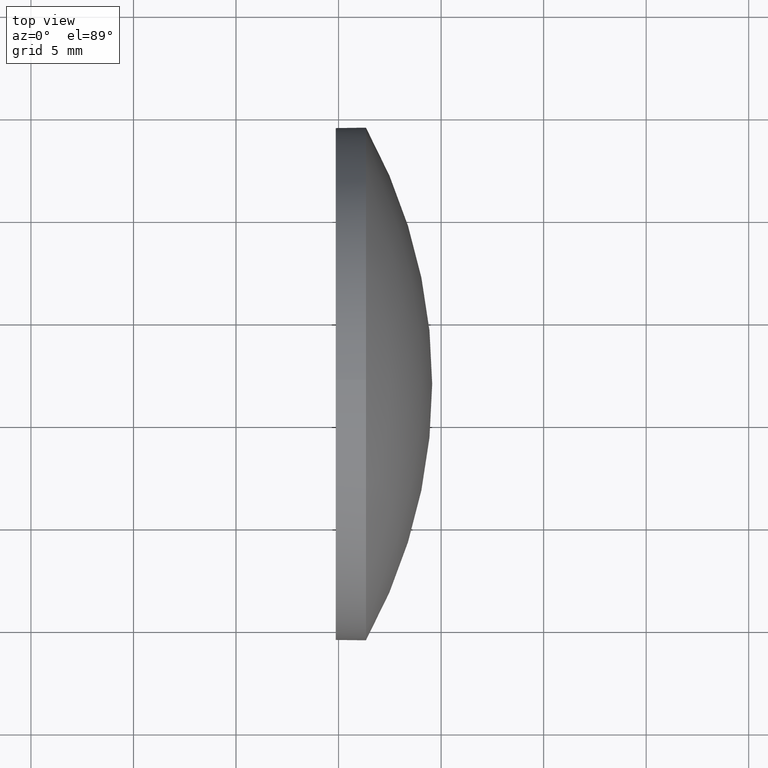
[diagram: clean part render]
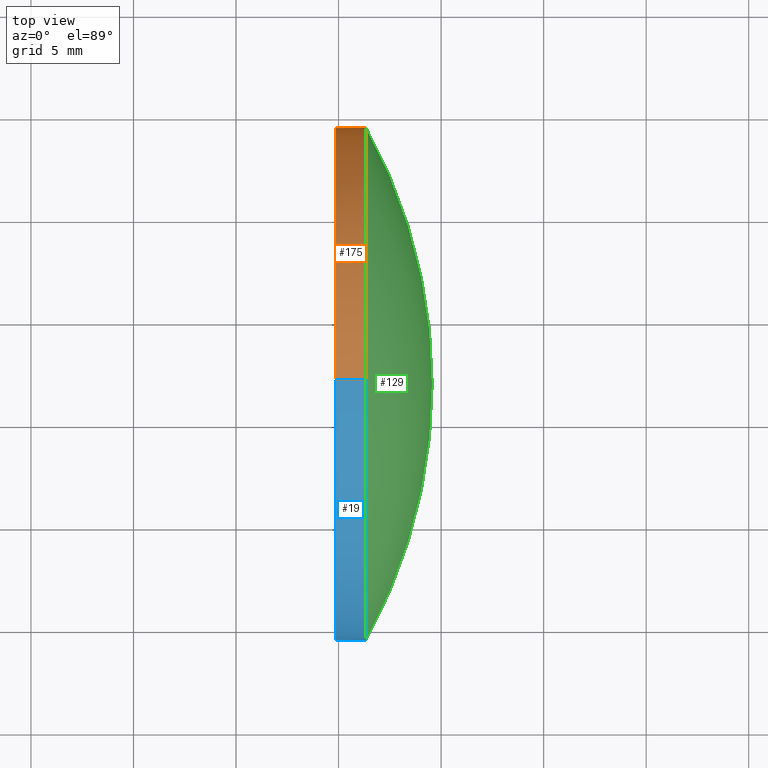
[diagram: same view with three faces highlighted in distinct colors, each labeled with its STEP entity id]
A machine part, top view with three faces highlighted in distinct colors.
Their STEP definitions:

[orange] entity #175 — the highlighted cylindrical surface (partial cylindrical patch) has radius 12.5 mm, axis along (-1, -0, -0).
#1 = EDGE_CURVE ( 'NONE', #102, #184, #131, .T. ) ;
#12 = CARTESIAN_POINT ( 'NONE',  ( 552.5001616387212400, 36.89370908063153800, 12.49999999999999600 ) ) ;
#13 = CARTESIAN_POINT ( 'NONE',  ( 552.5001616387212400, 36.89370908063153800, -12.49999999999999600 ) ) ;
#14 = CARTESIAN_POINT ( 'NONE',  ( 554.8657775414822000, 36.89370908063153800, 12.49999999999999600 ) ) ;
#17 = ORIENTED_EDGE ( 'NONE', *, *, #150, .F. ) ;
#23 = CARTESIAN_POINT ( 'NONE',  ( 554.8657775414822000, 36.89370908063153800, -12.49999999999999600 ) ) ;
#24 = DIRECTION ( 'NONE',  ( -1.000000000000000000, -0.0000000000000000000, -0.0000000000000000000 ) ) ;
#26 = DIRECTION ( 'NONE',  ( -1.000000000000000000, -0.0000000000000000000, -0.0000000000000000000 ) ) ;
#30 = CARTESIAN_POINT ( 'NONE',  ( 554.8657775414822000, 36.89370908063153800, 0.0000000000000000000 ) ) ;
#33 = AXIS2_PLACEMENT_3D ( 'NONE', #82, #70, #157 ) ;
#37 = LINE ( 'NONE', #13, #128 ) ;
#45 = DIRECTION ( 'NONE',  ( 0.0000000000000000000, 0.0000000000000000000, 1.000000000000000000 ) ) ;
#47 = AXIS2_PLACEMENT_3D ( 'NONE', #30, #141, #71 ) ;
#54 = CARTESIAN_POINT ( 'NONE',  ( 556.3357775414822300, 36.89370908063153800, 0.0000000000000000000 ) ) ;
#61 = VERTEX_POINT ( 'NONE', #14 ) ;
#65 = EDGE_LOOP ( 'NONE', ( #127, #151, #179, #17, #114 ) ) ;
#67 = CARTESIAN_POINT ( 'NONE',  ( 556.3357775414822300, 36.89370908063153800, 12.49999999999999600 ) ) ;
#68 = DIRECTION ( 'NONE',  ( 0.0000000000000000000, 0.0000000000000000000, 1.000000000000000000 ) ) ;
#70 = DIRECTION ( 'NONE',  ( -1.000000000000000000, -0.0000000000000000000, -0.0000000000000000000 ) ) ;
#71 = DIRECTION ( 'NONE',  ( 0.0000000000000000000, 0.0000000000000000000, 1.000000000000000000 ) ) ;
#77 = CYLINDRICAL_SURFACE ( 'NONE', #164, 12.49999999999999600 ) ;
#79 = LINE ( 'NONE', #12, #113 ) ;
#82 = CARTESIAN_POINT ( 'NONE',  ( 556.3357775414822300, 36.89370908063153800, 0.0000000000000000000 ) ) ;
#84 = CARTESIAN_POINT ( 'NONE',  ( 552.5001616387212400, 36.89370908063153800, 0.0000000000000000000 ) ) ;
#102 = VERTEX_POINT ( 'NONE', #67 ) ;
#107 = CIRCLE ( 'NONE', #146, 12.49999999999999600 ) ;
#110 = VERTEX_POINT ( 'NONE', #23 ) ;
#111 = CARTESIAN_POINT ( 'NONE',  ( 556.3357775414822300, 36.89370908063153800, -12.49999999999999600 ) ) ;
#113 = VECTOR ( 'NONE', #26, 1000.000000000000000 ) ;
#114 = ORIENTED_EDGE ( 'NONE', *, *, #1, .T. ) ;
#124 = DIRECTION ( 'NONE',  ( -1.000000000000000000, -0.0000000000000000000, -0.0000000000000000000 ) ) ;
#127 = ORIENTED_EDGE ( 'NONE', *, *, #132, .T. ) ;
#128 = VECTOR ( 'NONE', #139, 1000.000000000000000 ) ;
#131 = CIRCLE ( 'NONE', #33, 12.49999999999999600 ) ;
#132 = EDGE_CURVE ( 'NONE', #184, #173, #107, .T. ) ;
#139 = DIRECTION ( 'NONE',  ( -1.000000000000000000, -0.0000000000000000000, -0.0000000000000000000 ) ) ;
#141 = DIRECTION ( 'NONE',  ( -1.000000000000000000, -0.0000000000000000000, -0.0000000000000000000 ) ) ;
#146 = AXIS2_PLACEMENT_3D ( 'NONE', #54, #24, #68 ) ;
#150 = EDGE_CURVE ( 'NONE', #102, #61, #79, .T. ) ;
#151 = ORIENTED_EDGE ( 'NONE', *, *, #163, .T. ) ;
#157 = DIRECTION ( 'NONE',  ( 0.0000000000000000000, 0.0000000000000000000, 1.000000000000000000 ) ) ;
#160 = CIRCLE ( 'NONE', #47, 12.49999999999999600 ) ;
#163 = EDGE_CURVE ( 'NONE', #173, #110, #37, .T. ) ;
#164 = AXIS2_PLACEMENT_3D ( 'NONE', #84, #124, #45 ) ;
#165 = EDGE_CURVE ( 'NONE', #61, #110, #160, .T. ) ;
#173 = VERTEX_POINT ( 'NONE', #111 ) ;
#175 = ADVANCED_FACE ( 'NONE', ( #180 ), #77, .T. ) ;
#179 = ORIENTED_EDGE ( 'NONE', *, *, #165, .F. ) ;
#180 = FACE_OUTER_BOUND ( 'NONE', #65, .T. ) ;
#184 = VERTEX_POINT ( 'NONE', #185 ) ;
#185 = CARTESIAN_POINT ( 'NONE',  ( 556.3357775414822300, 49.39370908063151700, 1.530808498934187200E-015 ) ) ;

[blue] entity #19 — the highlighted cylindrical surface (partial cylindrical patch) has radius 12.5 mm, axis along (-1, -0, -0).
#9 = DIRECTION ( 'NONE',  ( 0.0000000000000000000, 0.0000000000000000000, 1.000000000000000000 ) ) ;
#11 = CARTESIAN_POINT ( 'NONE',  ( 554.8657775414822000, 36.89370908063153800, 0.0000000000000000000 ) ) ;
#12 = CARTESIAN_POINT ( 'NONE',  ( 552.5001616387212400, 36.89370908063153800, 12.49999999999999600 ) ) ;
#13 = CARTESIAN_POINT ( 'NONE',  ( 552.5001616387212400, 36.89370908063153800, -12.49999999999999600 ) ) ;
#14 = CARTESIAN_POINT ( 'NONE',  ( 554.8657775414822000, 36.89370908063153800, 12.49999999999999600 ) ) ;
#19 = ADVANCED_FACE ( 'NONE', ( #118 ), #147, .T. ) ;
#21 = EDGE_CURVE ( 'NONE', #173, #145, #96, .T. ) ;
#23 = CARTESIAN_POINT ( 'NONE',  ( 554.8657775414822000, 36.89370908063153800, -12.49999999999999600 ) ) ;
#26 = DIRECTION ( 'NONE',  ( -1.000000000000000000, -0.0000000000000000000, -0.0000000000000000000 ) ) ;
#37 = LINE ( 'NONE', #13, #128 ) ;
#40 = DIRECTION ( 'NONE',  ( -1.000000000000000000, -0.0000000000000000000, -0.0000000000000000000 ) ) ;
#48 = AXIS2_PLACEMENT_3D ( 'NONE', #103, #177, #53 ) ;
#51 = AXIS2_PLACEMENT_3D ( 'NONE', #11, #80, #119 ) ;
#53 = DIRECTION ( 'NONE',  ( 0.0000000000000000000, 0.0000000000000000000, 1.000000000000000000 ) ) ;
#55 = CARTESIAN_POINT ( 'NONE',  ( 556.3357775414822300, 24.39370908063157700, 0.0000000000000000000 ) ) ;
#61 = VERTEX_POINT ( 'NONE', #14 ) ;
#64 = EDGE_CURVE ( 'NONE', #110, #61, #99, .T. ) ;
#67 = CARTESIAN_POINT ( 'NONE',  ( 556.3357775414822300, 36.89370908063153800, 12.49999999999999600 ) ) ;
#69 = DIRECTION ( 'NONE',  ( -1.000000000000000000, -0.0000000000000000000, -0.0000000000000000000 ) ) ;
#76 = ORIENTED_EDGE ( 'NONE', *, *, #150, .T. ) ;
#78 = ORIENTED_EDGE ( 'NONE', *, *, #88, .T. ) ;
#79 = LINE ( 'NONE', #12, #113 ) ;
#80 = DIRECTION ( 'NONE',  ( -1.000000000000000000, -0.0000000000000000000, -0.0000000000000000000 ) ) ;
#88 = EDGE_CURVE ( 'NONE', #145, #102, #149, .T. ) ;
#89 = CARTESIAN_POINT ( 'NONE',  ( 556.3357775414822300, 36.89370908063153800, 0.0000000000000000000 ) ) ;
#95 = EDGE_LOOP ( 'NONE', ( #98, #134, #78, #76, #130 ) ) ;
#96 = CIRCLE ( 'NONE', #142, 12.49999999999999600 ) ;
#98 = ORIENTED_EDGE ( 'NONE', *, *, #163, .F. ) ;
#99 = CIRCLE ( 'NONE', #51, 12.49999999999999600 ) ;
#101 = AXIS2_PLACEMENT_3D ( 'NONE', #89, #40, #9 ) ;
#102 = VERTEX_POINT ( 'NONE', #67 ) ;
#103 = CARTESIAN_POINT ( 'NONE',  ( 552.5001616387212400, 36.89370908063153800, 0.0000000000000000000 ) ) ;
#110 = VERTEX_POINT ( 'NONE', #23 ) ;
#111 = CARTESIAN_POINT ( 'NONE',  ( 556.3357775414822300, 36.89370908063153800, -12.49999999999999600 ) ) ;
#113 = VECTOR ( 'NONE', #26, 1000.000000000000000 ) ;
#118 = FACE_OUTER_BOUND ( 'NONE', #95, .T. ) ;
#119 = DIRECTION ( 'NONE',  ( 0.0000000000000000000, 0.0000000000000000000, 1.000000000000000000 ) ) ;
#128 = VECTOR ( 'NONE', #139, 1000.000000000000000 ) ;
#130 = ORIENTED_EDGE ( 'NONE', *, *, #64, .F. ) ;
#134 = ORIENTED_EDGE ( 'NONE', *, *, #21, .T. ) ;
#138 = DIRECTION ( 'NONE',  ( 0.0000000000000000000, 0.0000000000000000000, 1.000000000000000000 ) ) ;
#139 = DIRECTION ( 'NONE',  ( -1.000000000000000000, -0.0000000000000000000, -0.0000000000000000000 ) ) ;
#142 = AXIS2_PLACEMENT_3D ( 'NONE', #154, #69, #138 ) ;
#145 = VERTEX_POINT ( 'NONE', #55 ) ;
#147 = CYLINDRICAL_SURFACE ( 'NONE', #48, 12.49999999999999600 ) ;
#149 = CIRCLE ( 'NONE', #101, 12.49999999999999600 ) ;
#150 = EDGE_CURVE ( 'NONE', #102, #61, #79, .T. ) ;
#154 = CARTESIAN_POINT ( 'NONE',  ( 556.3357775414822300, 36.89370908063153800, 0.0000000000000000000 ) ) ;
#163 = EDGE_CURVE ( 'NONE', #173, #110, #37, .T. ) ;
#173 = VERTEX_POINT ( 'NONE', #111 ) ;
#177 = DIRECTION ( 'NONE',  ( -1.000000000000000000, -0.0000000000000000000, -0.0000000000000000000 ) ) ;

[green] entity #129 — the highlighted spherical surface has radius 25.8023 mm.
#1 = EDGE_CURVE ( 'NONE', #102, #184, #131, .T. ) ;
#2 = CIRCLE ( 'NONE', #18, 25.80230650154791000 ) ;
#4 = EDGE_CURVE ( 'NONE', #39, #145, #2, .T. ) ;
#7 = CIRCLE ( 'NONE', #136, 25.80230650154793200 ) ;
#9 = DIRECTION ( 'NONE',  ( 0.0000000000000000000, 0.0000000000000000000, 1.000000000000000000 ) ) ;
#10 = FACE_OUTER_BOUND ( 'NONE', #166, .T. ) ;
#18 = AXIS2_PLACEMENT_3D ( 'NONE', #169, #153, #106 ) ;
#28 = DIRECTION ( 'NONE',  ( 0.0000000000000000000, 0.0000000000000000000, 1.000000000000000000 ) ) ;
#31 = DIRECTION ( 'NONE',  ( 0.0000000000000000000, -1.224646799147353200E-016, 1.000000000000000000 ) ) ;
#32 = ORIENTED_EDGE ( 'NONE', *, *, #1, .F. ) ;
#33 = AXIS2_PLACEMENT_3D ( 'NONE', #82, #70, #157 ) ;
#35 = ORIENTED_EDGE ( 'NONE', *, *, #88, .F. ) ;
#39 = VERTEX_POINT ( 'NONE', #123 ) ;
#40 = DIRECTION ( 'NONE',  ( -1.000000000000000000, -0.0000000000000000000, -0.0000000000000000000 ) ) ;
#43 = DIRECTION ( 'NONE',  ( 0.0000000000000000000, -1.000000000000000000, 0.0000000000000000000 ) ) ;
#44 = ORIENTED_EDGE ( 'NONE', *, *, #4, .F. ) ;
#55 = CARTESIAN_POINT ( 'NONE',  ( 556.3357775414822300, 24.39370908063157700, 0.0000000000000000000 ) ) ;
#57 = DIRECTION ( 'NONE',  ( 0.0000000000000000000, -1.000000000000000000, -1.224646799147353200E-016 ) ) ;
#67 = CARTESIAN_POINT ( 'NONE',  ( 556.3357775414822300, 36.89370908063153800, 12.49999999999999600 ) ) ;
#70 = DIRECTION ( 'NONE',  ( -1.000000000000000000, -0.0000000000000000000, -0.0000000000000000000 ) ) ;
#82 = CARTESIAN_POINT ( 'NONE',  ( 556.3357775414822300, 36.89370908063153800, 0.0000000000000000000 ) ) ;
#88 = EDGE_CURVE ( 'NONE', #145, #102, #149, .T. ) ;
#89 = CARTESIAN_POINT ( 'NONE',  ( 556.3357775414822300, 36.89370908063153800, 0.0000000000000000000 ) ) ;
#101 = AXIS2_PLACEMENT_3D ( 'NONE', #89, #40, #9 ) ;
#102 = VERTEX_POINT ( 'NONE', #67 ) ;
#106 = DIRECTION ( 'NONE',  ( -1.000000000000000000, 0.0000000000000000000, 0.0000000000000000000 ) ) ;
#117 = SPHERICAL_SURFACE ( 'NONE', #174, 25.80230650154793200 ) ;
#123 = CARTESIAN_POINT ( 'NONE',  ( 559.5657775414821300, 36.89370908063155200, 0.0000000000000000000 ) ) ;
#129 = ADVANCED_FACE ( 'NONE', ( #10 ), #117, .T. ) ;
#131 = CIRCLE ( 'NONE', #33, 12.49999999999999600 ) ;
#135 = CARTESIAN_POINT ( 'NONE',  ( 533.7634710399343000, 36.89370908063155200, 0.0000000000000000000 ) ) ;
#136 = AXIS2_PLACEMENT_3D ( 'NONE', #159, #31, #57 ) ;
#145 = VERTEX_POINT ( 'NONE', #55 ) ;
#149 = CIRCLE ( 'NONE', #101, 12.49999999999999600 ) ;
#153 = DIRECTION ( 'NONE',  ( 0.0000000000000000000, 0.0000000000000000000, -1.000000000000000000 ) ) ;
#157 = DIRECTION ( 'NONE',  ( 0.0000000000000000000, 0.0000000000000000000, 1.000000000000000000 ) ) ;
#158 = ORIENTED_EDGE ( 'NONE', *, *, #181, .T. ) ;
#159 = CARTESIAN_POINT ( 'NONE',  ( 533.7634710399343000, 36.89370908063155200, 0.0000000000000000000 ) ) ;
#166 = EDGE_LOOP ( 'NONE', ( #44, #158, #32, #35 ) ) ;
#169 = CARTESIAN_POINT ( 'NONE',  ( 533.7634710399343000, 36.89370908063155200, 0.0000000000000000000 ) ) ;
#174 = AXIS2_PLACEMENT_3D ( 'NONE', #135, #28, #43 ) ;
#181 = EDGE_CURVE ( 'NONE', #39, #184, #7, .T. ) ;
#184 = VERTEX_POINT ( 'NONE', #185 ) ;
#185 = CARTESIAN_POINT ( 'NONE',  ( 556.3357775414822300, 49.39370908063151700, 1.530808498934187200E-015 ) ) ;